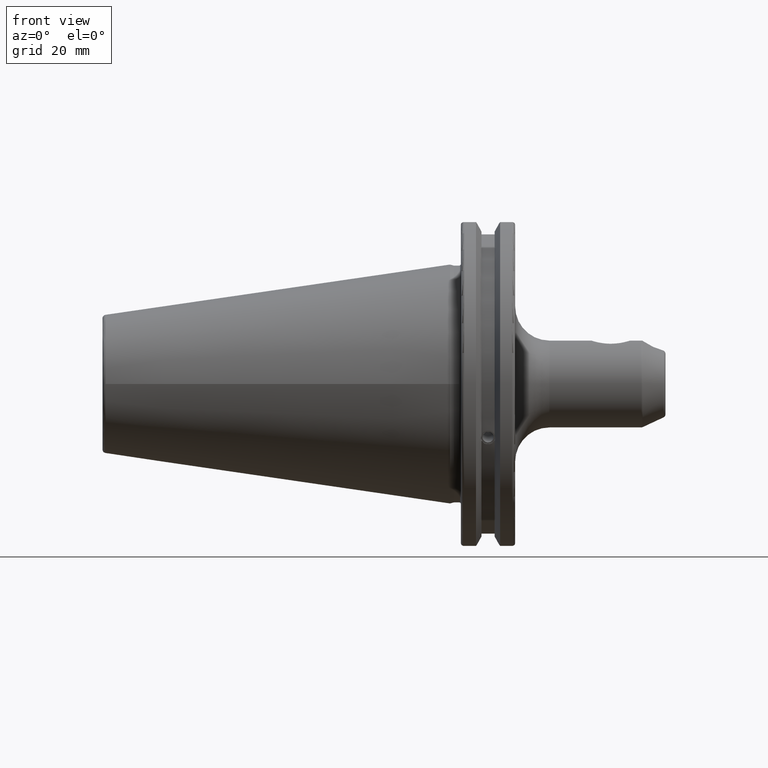
[diagram: clean part render]
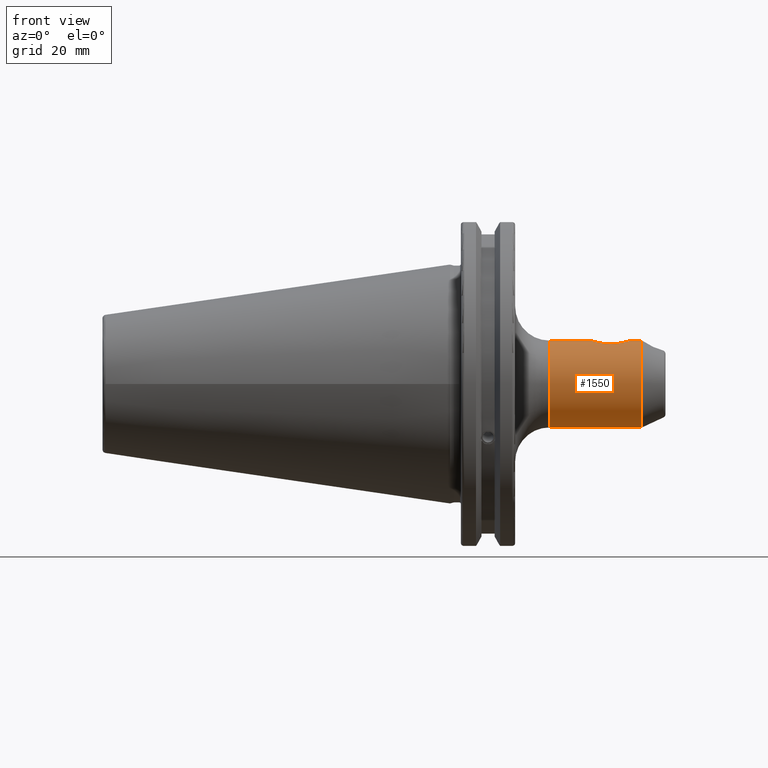
[diagram: same view with one face highlighted and labeled with its STEP entity id]
A machine part, front view. The second image highlights one B-rep face of the part: STEP entity #1550.
In plain terms, the highlighted cylindrical surface (bore or boss wall) has radius 12.7 mm, axis along (1, 0, 0).
Its self-contained STEP definition (entity closure, byte-faithful):
#59=FACE_BOUND('',#296,.T.);
#130=CIRCLE('',#1678,12.7);
#131=CIRCLE('',#1679,12.7);
#132=CIRCLE('',#1681,12.7);
#203=FACE_OUTER_BOUND('',#295,.T.);
#295=EDGE_LOOP('',(#1093,#1094,#1095,#1096,#1097));
#296=EDGE_LOOP('',(#1098,#1099));
#399=B_SPLINE_CURVE_WITH_KNOTS('',3,(#2419,#2420,#2421,#2422,#2423,#2424,
#2425,#2426,#2427,#2428,#2429,#2430,#2431,#2432,#2433,#2434,#2435,#2436,
#2437,#2438,#2439,#2440,#2441,#2442,#2443,#2444,#2445,#2446,#2447,#2448,
#2449,#2450),.UNSPECIFIED.,.F.,.F.,(4,2,2,2,2,2,2,2,2,2,2,2,2,2,2,4),(0.,
0.194534043372556,0.389068086745113,0.592757762803209,0.694602600832257,
0.796447438861306,0.898292276890354,1.0001371149194,1.2038267909775,1.39836083435006,
1.59289487772261,1.78742892109517,1.98196296446772,2.18565264052582,2.28749747855487,
2.38934231658392),.UNSPECIFIED.);
#400=B_SPLINE_CURVE_WITH_KNOTS('',3,(#2451,#2452,#2453,#2454,#2455,#2456,
#2457,#2458,#2459,#2460,#2461,#2462),.UNSPECIFIED.,.F.,.F.,(4,2,2,2,2,4),
(2.38934231658392,2.49118715461297,2.59303199264201,2.79672166870011,2.99125571207267,
3.18578975544522),.UNSPECIFIED.);
#446=LINE('',#2501,#541);
#541=VECTOR('',#1890,12.7);
#644=VERTEX_POINT('',#2416);
#645=VERTEX_POINT('',#2418);
#656=VERTEX_POINT('',#2494);
#657=VERTEX_POINT('',#2496);
#658=VERTEX_POINT('',#2500);
#809=EDGE_CURVE('',#645,#644,#399,.T.);
#810=EDGE_CURVE('',#644,#645,#400,.T.);
#827=EDGE_CURVE('',#656,#657,#130,.T.);
#828=EDGE_CURVE('',#657,#656,#131,.T.);
#829=EDGE_CURVE('',#657,#658,#446,.T.);
#830=EDGE_CURVE('',#658,#658,#132,.T.);
#1093=ORIENTED_EDGE('',*,*,#827,.F.);
#1094=ORIENTED_EDGE('',*,*,#828,.F.);
#1095=ORIENTED_EDGE('',*,*,#829,.T.);
#1096=ORIENTED_EDGE('',*,*,#830,.F.);
#1097=ORIENTED_EDGE('',*,*,#829,.F.);
#1098=ORIENTED_EDGE('',*,*,#809,.T.);
#1099=ORIENTED_EDGE('',*,*,#810,.T.);
#1515=CYLINDRICAL_SURFACE('',#1680,12.7);
#1550=ADVANCED_FACE('',(#203,#59),#1515,.T.);
#1678=AXIS2_PLACEMENT_3D('',#2497,#1884,#1885);
#1679=AXIS2_PLACEMENT_3D('',#2498,#1886,#1887);
#1680=AXIS2_PLACEMENT_3D('',#2499,#1888,#1889);
#1681=AXIS2_PLACEMENT_3D('',#2502,#1891,#1892);
#1884=DIRECTION('center_axis',(1.,0.,0.));
#1885=DIRECTION('ref_axis',(0.,0.,-1.));
#1886=DIRECTION('center_axis',(1.,0.,0.));
#1887=DIRECTION('ref_axis',(0.,0.,-1.));
#1888=DIRECTION('center_axis',(1.,0.,0.));
#1889=DIRECTION('ref_axis',(0.,0.,1.));
#1890=DIRECTION('',(-1.,0.,0.));
#1891=DIRECTION('center_axis',(-1.,0.,0.));
#1892=DIRECTION('ref_axis',(0.,1.22464679914735E-16,-1.));
#2416=CARTESIAN_POINT('',(41.31,-6.96824028714844E-16,12.7));
#2418=CARTESIAN_POINT('',(47.,4.76300913158663,11.7730091315866));
#2419=CARTESIAN_POINT('Ctrl Pts',(47.,4.76300913158663,11.7730091315866));
#2420=CARTESIAN_POINT('Ctrl Pts',(47.6484468112419,4.76300913158663,11.7730091315866));
#2421=CARTESIAN_POINT('Ctrl Pts',(48.3467781646187,4.66322089533567,11.8150200347759));
#2422=CARTESIAN_POINT('Ctrl Pts',(49.6632457581966,4.24302229098334,11.9723470390773));
#2423=CARTESIAN_POINT('Ctrl Pts',(50.2816736965108,3.92275647480605,12.0856014487693));
#2424=CARTESIAN_POINT('Ctrl Pts',(51.3268850820353,3.13690132603284,12.3136113594132));
#2425=CARTESIAN_POINT('Ctrl Pts',(51.8218344399661,2.60402376412798,12.4457118602175));
#2426=CARTESIAN_POINT('Ctrl Pts',(52.3335181598992,1.68278169701194,12.591859249514));
#2427=CARTESIAN_POINT('Ctrl Pts',(52.4670414368732,1.35559485566835,12.631938417979));
#2428=CARTESIAN_POINT('Ctrl Pts',(52.6453220451225,0.683958752651757,12.6860437504085));
#2429=CARTESIAN_POINT('Ctrl Pts',(52.69,0.339482793430161,12.7));
#2430=CARTESIAN_POINT('Ctrl Pts',(52.69,-0.339482793430161,12.7));
#2431=CARTESIAN_POINT('Ctrl Pts',(52.6453220451225,-0.683958752651757,12.6860437504085));
#2432=CARTESIAN_POINT('Ctrl Pts',(52.4670414368732,-1.35559485566835,12.631938417979));
#2433=CARTESIAN_POINT('Ctrl Pts',(52.3335181598992,-1.68278169701194,12.591859249514));
#2434=CARTESIAN_POINT('Ctrl Pts',(51.8218344399661,-2.60402376412798,12.4457118602175));
#2435=CARTESIAN_POINT('Ctrl Pts',(51.3268850820353,-3.13690132603284,12.3136113594132));
#2436=CARTESIAN_POINT('Ctrl Pts',(50.2816736965108,-3.92275647480605,12.0856014487693));
#2437=CARTESIAN_POINT('Ctrl Pts',(49.6632457581966,-4.24302229098335,11.9723470390773));
#2438=CARTESIAN_POINT('Ctrl Pts',(48.3467781646187,-4.66322089533567,11.8150200347759));
#2439=CARTESIAN_POINT('Ctrl Pts',(47.6484468112419,-4.76300913158664,11.7730091315866));
#2440=CARTESIAN_POINT('Ctrl Pts',(46.3515531887582,-4.76300913158664,11.7730091315866));
#2441=CARTESIAN_POINT('Ctrl Pts',(45.6532218353813,-4.66322089533566,11.8150200347759));
#2442=CARTESIAN_POINT('Ctrl Pts',(44.3367542418034,-4.24302229098334,11.9723470390773));
#2443=CARTESIAN_POINT('Ctrl Pts',(43.7183263034893,-3.92275647480605,12.0856014487693));
#2444=CARTESIAN_POINT('Ctrl Pts',(42.6731149179647,-3.13690132603284,12.3136113594132));
#2445=CARTESIAN_POINT('Ctrl Pts',(42.1781655600339,-2.60402376412798,12.4457118602175));
#2446=CARTESIAN_POINT('Ctrl Pts',(41.6664818401008,-1.68278169701194,12.591859249514));
#2447=CARTESIAN_POINT('Ctrl Pts',(41.5329585631268,-1.35559485566835,12.631938417979));
#2448=CARTESIAN_POINT('Ctrl Pts',(41.3546779548776,-0.683958752651757,12.6860437504085));
#2449=CARTESIAN_POINT('Ctrl Pts',(41.31,-0.339482793430161,12.7));
#2450=CARTESIAN_POINT('Ctrl Pts',(41.31,-6.93889390390723E-17,12.7));
#2451=CARTESIAN_POINT('Ctrl Pts',(41.31,-1.11022302462516E-15,12.7));
#2452=CARTESIAN_POINT('Ctrl Pts',(41.31,0.33948279343016,12.7));
#2453=CARTESIAN_POINT('Ctrl Pts',(41.3546779548776,0.683958752651756,12.6860437504085));
#2454=CARTESIAN_POINT('Ctrl Pts',(41.5329585631268,1.35559485566835,12.631938417979));
#2455=CARTESIAN_POINT('Ctrl Pts',(41.6664818401008,1.68278169701194,12.591859249514));
#2456=CARTESIAN_POINT('Ctrl Pts',(42.1781655600339,2.60402376412797,12.4457118602175));
#2457=CARTESIAN_POINT('Ctrl Pts',(42.6731149179647,3.13690132603284,12.3136113594132));
#2458=CARTESIAN_POINT('Ctrl Pts',(43.7183263034893,3.92275647480605,12.0856014487693));
#2459=CARTESIAN_POINT('Ctrl Pts',(44.3367542418034,4.24302229098334,11.9723470390773));
#2460=CARTESIAN_POINT('Ctrl Pts',(45.6532218353813,4.66322089533566,11.8150200347759));
#2461=CARTESIAN_POINT('Ctrl Pts',(46.3515531887582,4.76300913158664,11.7730091315866));
#2462=CARTESIAN_POINT('Ctrl Pts',(47.,4.76300913158664,11.7730091315866));
#2494=CARTESIAN_POINT('',(55.9158831917265,-1.55530143491714E-15,12.7));
#2496=CARTESIAN_POINT('',(55.9158831917265,1.55530143491714E-15,-12.7));
#2497=CARTESIAN_POINT('Origin',(55.9158831917265,0.,0.));
#2498=CARTESIAN_POINT('Origin',(55.9158831917265,0.,0.));
#2499=CARTESIAN_POINT('Origin',(37.5937889271847,0.,0.));
#2500=CARTESIAN_POINT('',(29.05,1.55530143491714E-15,-12.7));
#2501=CARTESIAN_POINT('',(37.5937889271847,1.55530143491714E-15,-12.7));
#2502=CARTESIAN_POINT('Origin',(29.05,0.,0.));